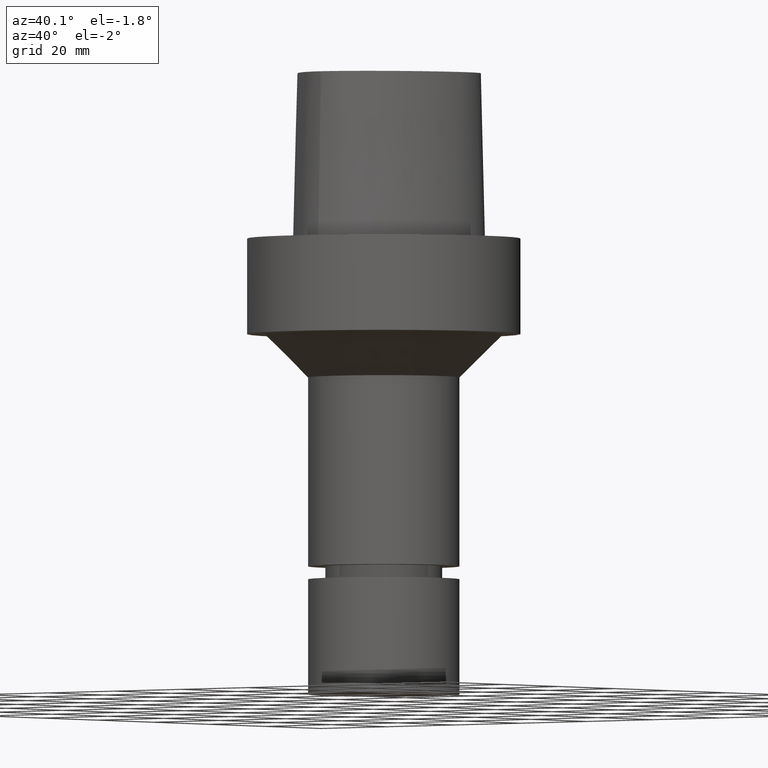
[diagram: clean part render]
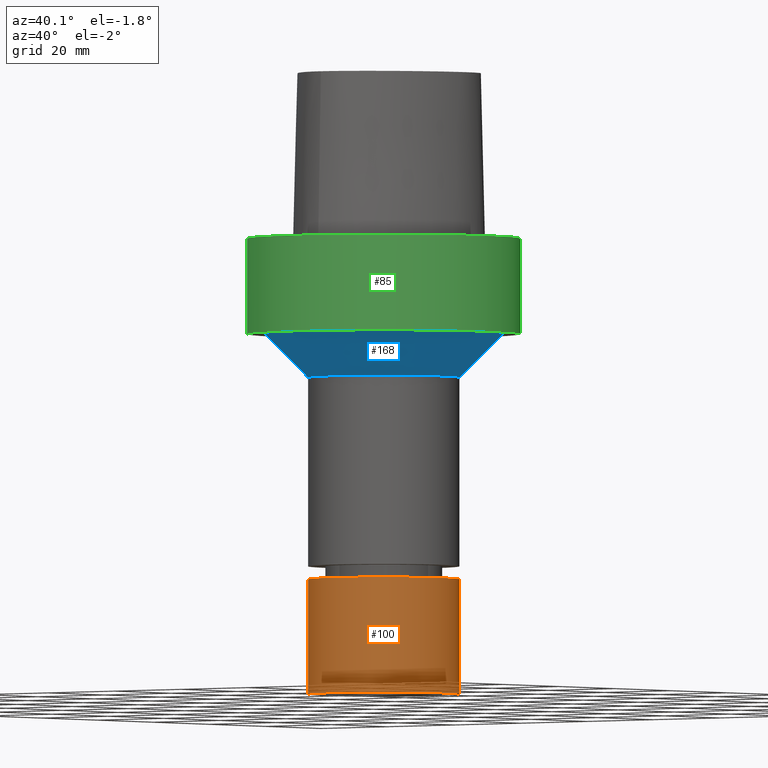
[diagram: same view with three faces highlighted in distinct colors, each labeled with its STEP entity id]
A machine part, auxiliary view with three faces highlighted in distinct colors.
Their STEP definitions:

[orange] entity #100 — the highlighted cylindrical surface (bore or boss wall) has radius 17.5 mm, axis along (0, 0, -1).
#100=ADVANCED_FACE('Unnamed[1]',(#232,#233),#234,.T.);
#117=EDGE_CURVE('Unnamed[1]',#257,#257,#258,.T.);
#142=EDGE_CURVE('Unnamed[1]',#294,#294,#295,.T.);
#232=FACE_BOUND('',#472,.T.);
#233=FACE_BOUND('',#473,.T.);
#234=CYLINDRICAL_SURFACE('',#474,17.5);
#257=VERTEX_POINT('',#518);
#258=CIRCLE('',#519,17.5);
#294=VERTEX_POINT('',#600);
#295=CIRCLE('',#601,17.5);
#472=EDGE_LOOP('',(#782));
#473=EDGE_LOOP('',(#783));
#474=AXIS2_PLACEMENT_3D('',#784,#785,#786);
#518=CARTESIAN_POINT('',(4.80673962098472E-015,17.5,-78.5000152587891));
#519=AXIS2_PLACEMENT_3D('',#806,#807,#808);
#600=CARTESIAN_POINT('',(6.4293956955236E-015,17.5,-105.0));
#601=AXIS2_PLACEMENT_3D('',#838,#839,#840);
#782=ORIENTED_EDGE('',*,*,#142,.F.);
#783=ORIENTED_EDGE('',*,*,#117,.T.);
#784=CARTESIAN_POINT('',(5.61806765825416E-015,1.12361353165083E-014,-91.7500076293945));
#785=DIRECTION('',(6.12323399573677E-017,1.22464679914735E-016,-1.0));
#786=DIRECTION('',(-1.23259516440783E-032,1.0,1.22464679914735E-016));
#806=CARTESIAN_POINT('',(4.80673962098472E-015,9.61347924196944E-015,-78.5000152587891));
#807=DIRECTION('',(6.12323399573677E-017,1.22464679914735E-016,-1.0));
#808=DIRECTION('',(-1.23259516440783E-032,1.0,1.22464679914735E-016));
#838=CARTESIAN_POINT('',(6.4293956955236E-015,1.28587913910472E-014,-105.0));
#839=DIRECTION('',(6.12323399573677E-017,1.22464679914735E-016,-1.0));
#840=DIRECTION('',(-1.23259516440783E-032,1.0,1.22464679914735E-016));

[blue] entity #168 — the highlighted conical surface has half-angle 45 deg.
#155=EDGE_CURVE('Unnamed[1]',#312,#312,#313,.T.);
#157=EDGE_CURVE('Unnamed[1]',#315,#315,#316,.T.);
#168=ADVANCED_FACE('Unnamed[1]',(#330,#331),#332,.T.);
#312=VERTEX_POINT('',#622);
#313=CIRCLE('',#623,27.4999999999995);
#315=VERTEX_POINT('',#626);
#316=CIRCLE('',#627,17.4999999999999);
#330=FACE_BOUND('',#661,.T.);
#331=FACE_BOUND('',#662,.T.);
#332=CONICAL_SURFACE('',#663,22.4999999999997,0.785398163397432);
#622=CARTESIAN_POINT('',(1.34711147906211E-015,27.4999999999995,-22.0000000000003));
#623=AXIS2_PLACEMENT_3D('',#859,#860,#861);
#626=CARTESIAN_POINT('',(1.95943487863578E-015,17.4999999999999,-32.0000000000002));
#627=AXIS2_PLACEMENT_3D('',#862,#863,#864);
#661=EDGE_LOOP('',(#877));
#662=EDGE_LOOP('',(#878));
#663=AXIS2_PLACEMENT_3D('',#879,#880,#881);
#859=CARTESIAN_POINT('',(1.34711147906211E-015,2.69422295812421E-015,-22.0000000000003));
#860=DIRECTION('',(6.12323399573676E-017,1.22464679914735E-016,-1.0));
#861=DIRECTION('',(-1.23259516440783E-032,1.0,1.22464679914735E-016));
#862=CARTESIAN_POINT('',(1.95943487863578E-015,3.91886975727156E-015,-32.0000000000002));
#863=DIRECTION('',(6.12323399573677E-017,1.22464679914735E-016,-1.0));
#864=DIRECTION('',(-1.23259516440783E-032,1.0,1.22464679914735E-016));
#877=ORIENTED_EDGE('',*,*,#157,.F.);
#878=ORIENTED_EDGE('',*,*,#155,.T.);
#879=CARTESIAN_POINT('',(1.65327317884894E-015,3.30654635769788E-015,-27.0000000000002));
#880=DIRECTION('',(-6.12323399573677E-017,-1.22464679914735E-016,1.0));
#881=DIRECTION('',(-1.23259516440783E-032,1.0,1.22464679914735E-016));

[green] entity #85 — the highlighted cylindrical surface (bore or boss wall) has radius 31.5 mm, axis along (0, 0, -1).
#85=ADVANCED_FACE('Unnamed[1]',(#210,#211),#212,.T.);
#108=EDGE_CURVE('Unnamed[1]',#243,#243,#244,.T.);
#119=EDGE_CURVE('Unnamed[1]',#260,#260,#261,.T.);
#210=FACE_BOUND('',#373,.T.);
#211=FACE_BOUND('',#374,.T.);
#212=CYLINDRICAL_SURFACE('',#375,31.5);
#243=VERTEX_POINT('',#485);
#244=CIRCLE('',#486,31.5);
#260=VERTEX_POINT('',#522);
#261=CIRCLE('',#523,31.5);
#373=EDGE_LOOP('',(#757));
#374=EDGE_LOOP('',(#758));
#375=AXIS2_PLACEMENT_3D('',#759,#760,#761);
#485=CARTESIAN_POINT('',(-3.88267476788467E-031,31.5,3.85763741731416E-015));
#486=AXIS2_PLACEMENT_3D('',#794,#795,#796);
#522=CARTESIAN_POINT('',(1.34711147906212E-015,31.5,-22.0000000000006));
#523=AXIS2_PLACEMENT_3D('',#809,#810,#811);
#757=ORIENTED_EDGE('',*,*,#119,.F.);
#758=ORIENTED_EDGE('',*,*,#108,.T.);
#759=CARTESIAN_POINT('',(6.73555739531062E-016,1.34711147906212E-015,-11.0000000000003));
#760=DIRECTION('',(6.12323399573677E-017,1.22464679914735E-016,-1.0));
#761=DIRECTION('',(-1.23259516440783E-032,1.0,1.22464679914735E-016));
#794=CARTESIAN_POINT('',(0.0,0.0,0.0));
#795=DIRECTION('',(6.12323399573677E-017,1.22464679914735E-016,-1.0));
#796=DIRECTION('',(-1.23259516440783E-032,1.0,1.22464679914735E-016));
#809=CARTESIAN_POINT('',(1.34711147906212E-015,2.69422295812425E-015,-22.0000000000006));
#810=DIRECTION('',(6.12323399573677E-017,1.22464679914735E-016,-1.0));
#811=DIRECTION('',(-1.23259516440783E-032,1.0,1.22464679914735E-016));